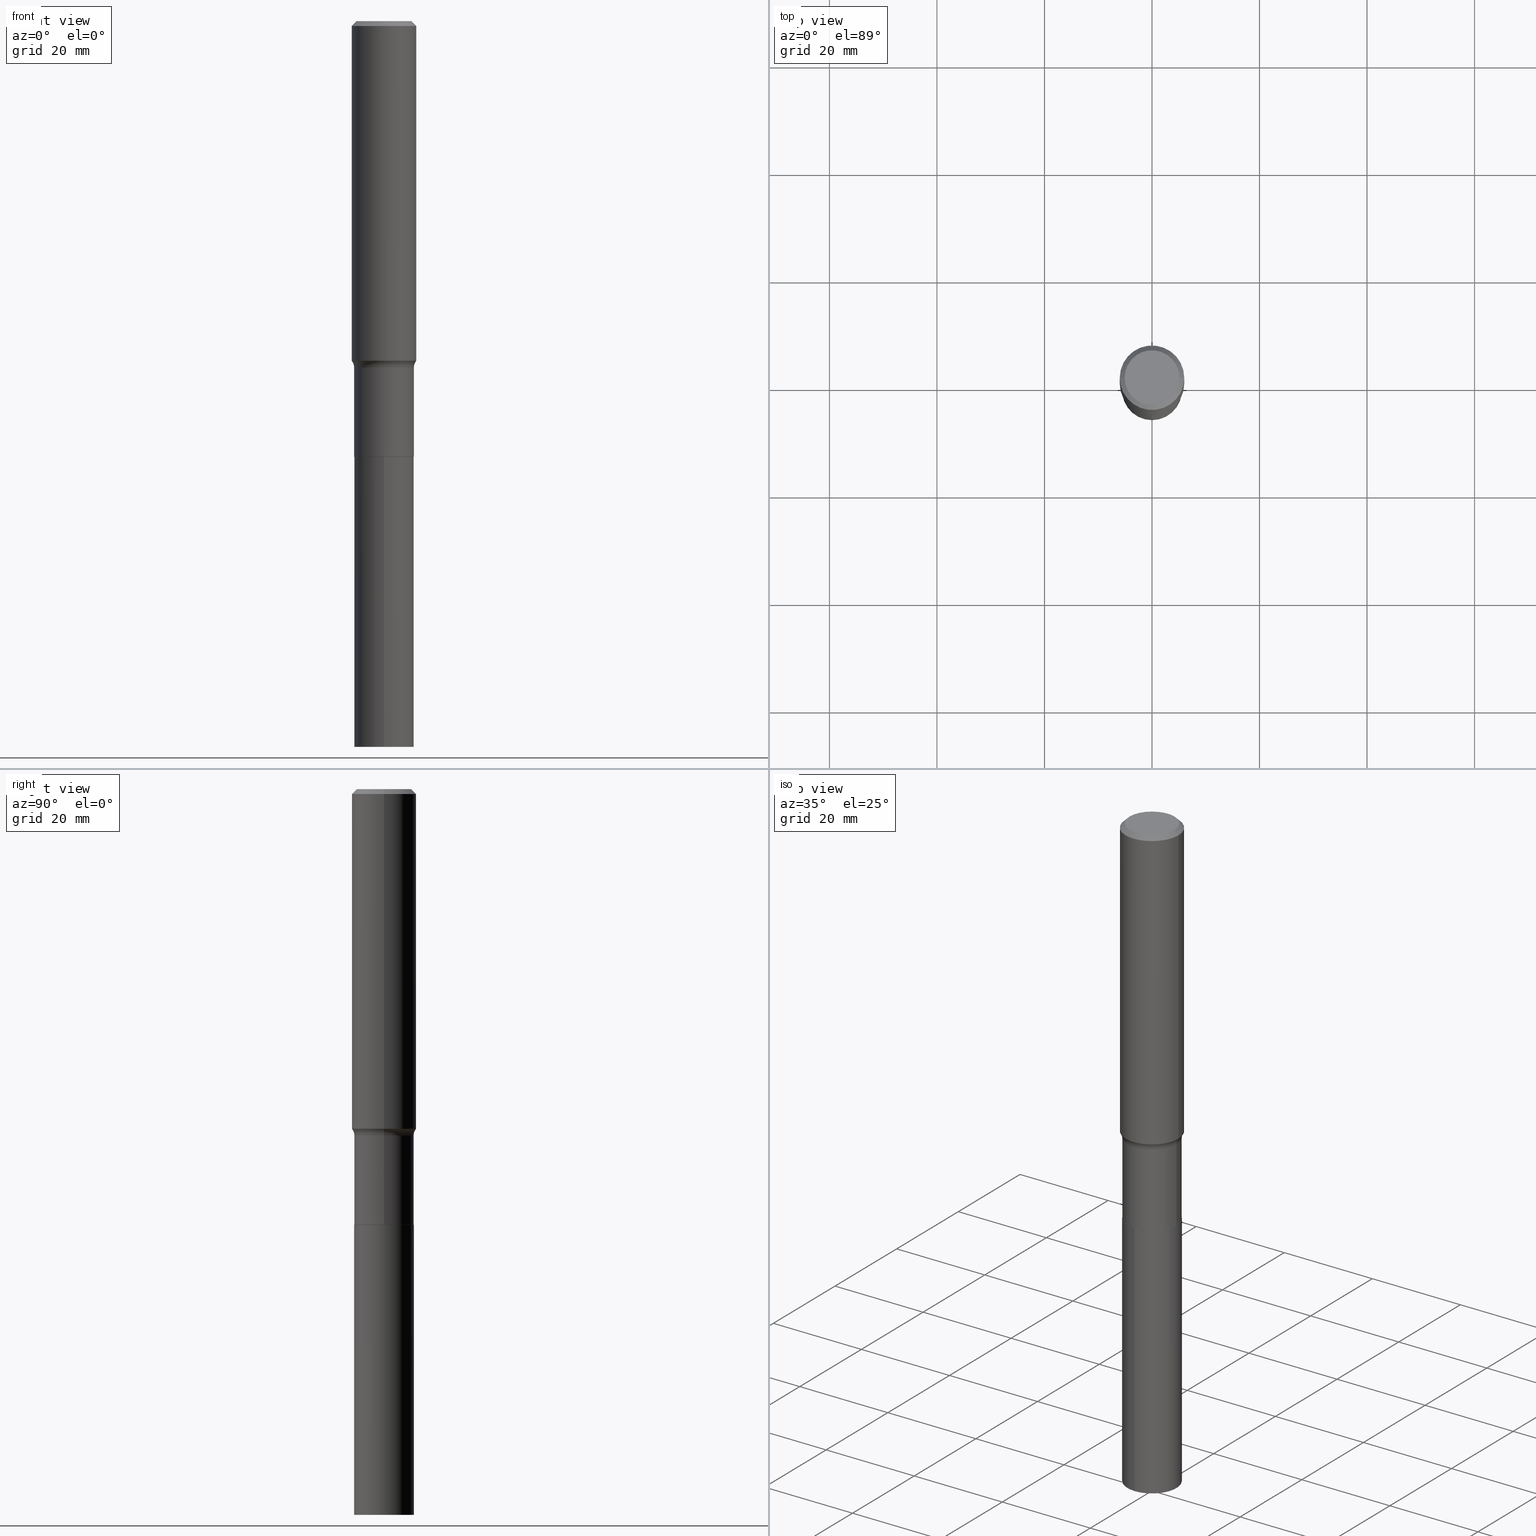
[diagram: canonical four-view strip — front | top / right | iso, engineering-drawing reading convention]
A machine part, canonical four-view strip (front | top / right | iso — engineering-drawing reading convention). The complete STEP part file that produces these views, byte-faithful:
ISO-10303-21;
HEADER;
FILE_DESCRIPTION (( 'STEP AP203' ),
    '1' );
FILE_NAME ('67899.STEP',
    '2024-04-19T16:57:11',
    ( '' ),
    ( '' ),
    'SwSTEP 2.0',
    'SolidWorks 2023',
    '' );
FILE_SCHEMA (( 'CONFIG_CONTROL_DESIGN' ));
ENDSEC;

DATA;
#1 = CARTESIAN_POINT ( 'NONE',  ( -1.525777345074319177E-15, -0.2185000000000185405, -5.315000000000000391 ) ) ;
#2 = DIRECTION ( 'NONE',  ( 0.7071067811865450192, -7.319954787623246579E-15, -0.7071067811865500152 ) ) ;
#3 = DIRECTION ( 'NONE',  ( -6.982962677686265922E-15, -1.000000000000000000, 2.500547362621751271E-15 ) ) ;
#4 = AXIS2_PLACEMENT_3D ( 'NONE', #225, #375, #15 ) ;
#5 = APPROVAL_STATUS ( 'not_yet_approved' ) ;
#6 = EDGE_LOOP ( 'NONE', ( #368, #385 ) ) ;
#7 = CARTESIAN_POINT ( 'NONE',  ( -5.563619623239905406E-29, -4.513804178062054934E-14, -5.315000000000001279 ) ) ;
#8 = DIRECTION ( 'NONE',  ( -2.445468806185136597E-29, 3.491481338843145583E-15, 1.000000000000000000 ) ) ;
#9 = SHAPE_DEFINITION_REPRESENTATION ( #188, #115 ) ;
#10 = ORIENTED_EDGE ( 'NONE', *, *, #407, .T. ) ;
#11 = LOCAL_TIME ( 12, 57, 11.00000000000000000, #175 ) ;
#12 = DIRECTION ( 'NONE',  ( -0.7071067811865450192, 2.468850131082230634E-15, -0.7071067811865500152 ) ) ;
#13 = EDGE_LOOP ( 'NONE', ( #49, #160, #197, #26 ) ) ;
#14 = CARTESIAN_POINT ( 'NONE',  ( -0.2361999999999999933, -2.725578971937181462E-15, -0.03543000000000023908 ) ) ;
#15 = DIRECTION ( 'NONE',  ( 1.000000000000000000, -6.982962677686266711E-15, 4.876176775795936353E-29 ) ) ;
#16 = ORIENTED_EDGE ( 'NONE', *, *, #218, .F. ) ;
#17 = DIRECTION ( 'NONE',  ( 1.000000000000000000, -6.982962677686265922E-15, 4.876176775795935793E-29 ) ) ;
#18 = CC_DESIGN_PERSON_AND_ORGANIZATION_ASSIGNMENT ( #431, #288, ( #279 ) ) ;
#19 = EDGE_CURVE ( 'NONE', #328, #401, #293, .T. ) ;
#20 = CARTESIAN_POINT ( 'NONE',  ( 7.798600022924401307E-29, -1.113433398957079310E-14, -3.189000000000000501 ) ) ;
#21 = EDGE_LOOP ( 'NONE', ( #118, #378, #416, #117 ) ) ;
#22 = CIRCLE ( 'NONE', #350, 0.2184999999999999998 ) ;
#23 = DIRECTION ( 'NONE',  ( -6.982962677686265922E-15, -1.000000000000000000, 5.001094725243502542E-15 ) ) ;
#24 = ORIENTED_EDGE ( 'NONE', *, *, #42, .F. ) ;
#25 = LINE ( 'NONE', #461, #217 ) ;
#26 = ORIENTED_EDGE ( 'NONE', *, *, #224, .F. ) ;
#27 = DIRECTION ( 'NONE',  ( -2.445468806185136597E-29, 3.491481338843145583E-15, 1.000000000000000000 ) ) ;
#28 = ORIENTED_EDGE ( 'NONE', *, *, #203, .F. ) ;
#29 = CC_DESIGN_APPROVAL ( #437, ( #279 ) ) ;
#30 = APPROVAL_STATUS ( 'not_yet_approved' ) ;
#31 = DIRECTION ( 'NONE',  ( 6.982962677686265922E-15, 1.000000000000000000, -3.491096510204006240E-15 ) ) ;
#32 = DIRECTION ( 'NONE',  ( -2.445468806185136597E-29, 3.491481338843145583E-15, 1.000000000000000000 ) ) ;
#33 = PERSON_AND_ORGANIZATION_ROLE ( 'creator' ) ;
#34 = DIRECTION ( 'NONE',  ( -2.445737530587578084E-29, 3.491096510204006240E-15, 1.000000000000000000 ) ) ;
#35 = DIRECTION ( 'NONE',  ( -2.445468806185136597E-29, 3.491481338843145583E-15, 1.000000000000000000 ) ) ;
#36 = EDGE_CURVE ( 'NONE', #184, #248, #299, .T. ) ;
#37 = CALENDAR_DATE ( 2024, 19, 4 ) ;
#38 = AXIS2_PLACEMENT_3D ( 'NONE', #384, #34, #3 ) ;
#39 =( GEOMETRIC_REPRESENTATION_CONTEXT ( 3 ) GLOBAL_UNCERTAINTY_ASSIGNED_CONTEXT ( ( #404 ) ) GLOBAL_UNIT_ASSIGNED_CONTEXT ( ( #314, #57, #352 ) ) REPRESENTATION_CONTEXT ( 'NONE', 'WORKASPACE' ) );
#40 = CC_DESIGN_DATE_AND_TIME_ASSIGNMENT ( #399, #219, ( #324 ) ) ;
#41 = SECURITY_CLASSIFICATION_LEVEL ( 'unclassified' ) ;
#42 = EDGE_CURVE ( 'NONE', #113, #401, #126, .T. ) ;
#43 = CALENDAR_DATE ( 2024, 19, 4 ) ;
#44 = EDGE_LOOP ( 'NONE', ( #458, #137, #122, #221 ) ) ;
#45 = DIRECTION ( 'NONE',  ( -2.445468806185136597E-29, 3.491481338843145583E-15, 1.000000000000000000 ) ) ;
#46 = DIRECTION ( 'NONE',  ( -2.445737530587578084E-29, 3.491096510204006240E-15, 1.000000000000000000 ) ) ;
#47 = ORIENTED_EDGE ( 'NONE', *, *, #154, .F. ) ;
#48 = DIRECTION ( 'NONE',  ( -2.445468806185136597E-29, 3.491481338843145583E-15, 1.000000000000000000 ) ) ;
#49 = ORIENTED_EDGE ( 'NONE', *, *, #238, .F. ) ;
#50 = VECTOR ( 'NONE', #356, 39.37007874015748143 ) ;
#51 = AXIS2_PLACEMENT_3D ( 'NONE', #316, #35, #183 ) ;
#52 = ADVANCED_FACE ( 'NONE', ( #165 ), #269, .F. ) ;
#53 = DIRECTION ( 'NONE',  ( -2.445468806185136597E-29, 3.491481338843145583E-15, 1.000000000000000000 ) ) ;
#54 = VERTEX_POINT ( 'NONE', #424 ) ;
#55 = CARTESIAN_POINT ( 'NONE',  ( -1.001697619218023151E-46, 1.430158722866391908E-32, 4.096137381448114529E-18 ) ) ;
#56 = ORIENTED_EDGE ( 'NONE', *, *, #69, .F. ) ;
#57 =( NAMED_UNIT ( * ) PLANE_ANGLE_UNIT ( ) SI_UNIT ( $, .RADIAN. ) );
#58 = EDGE_CURVE ( 'NONE', #343, #328, #93, .T. ) ;
#59 = EDGE_CURVE ( 'NONE', #401, #328, #106, .T. ) ;
#60 = AXIS2_PLACEMENT_3D ( 'NONE', #305, #423, #62 ) ;
#61 = LENGTH_MEASURE_WITH_UNIT ( LENGTH_MEASURE( 0.02539999999999999897 ), #125 );
#62 = DIRECTION ( 'NONE',  ( -1.000000000000000000, 7.105427357601001859E-15, 0.000000000000000000 ) ) ;
#63 = CARTESIAN_POINT ( 'NONE',  ( -0.2362000000000001598, 1.678301941865357775E-15, -1.161852468318209598E-29 ) ) ;
#64 = CARTESIAN_POINT ( 'NONE',  ( 8.664295980313998742E-31, -1.237031838352134818E-16, -0.03543000000000023908 ) ) ;
#65 = PERSON_AND_ORGANIZATION_ROLE ( 'design_owner' ) ;
#66 = AXIS2_PLACEMENT_3D ( 'NONE', #211, #162, #17 ) ;
#67 = CARTESIAN_POINT ( 'NONE',  ( -5.008488096090115757E-47, 7.150793614331959538E-33, 2.048068690724057264E-18 ) ) ;
#68 = APPROVAL_STATUS ( 'not_yet_approved' ) ;
#69 = EDGE_CURVE ( 'NONE', #150, #260, #198, .T. ) ;
#70 = ADVANCED_FACE ( 'NONE', ( #173 ), #358, .F. ) ;
#71 = CARTESIAN_POINT ( 'NONE',  ( 1.552535877635949067E-15, 0.2184999999999888698, -3.189000000000000945 ) ) ;
#72 = CARTESIAN_POINT ( 'NONE',  ( 0.2362000000000003264, -1.033343442823936694E-14, -2.487213248760255624 ) ) ;
#73 = DATE_AND_TIME ( #243, #438 ) ;
#74 = CARTESIAN_POINT ( 'NONE',  ( 6.205132548814167123E-29, -8.859284749180598143E-15, -2.537400000000000766 ) ) ;
#75 = CARTESIAN_POINT ( 'NONE',  ( -0.2362000000000003264, -7.005756701904507710E-15, -2.487213248760255624 ) ) ;
#76 = AXIS2_PLACEMENT_3D ( 'NONE', #389, #240, #31 ) ;
#77 = EDGE_CURVE ( 'NONE', #113, #142, #272, .T. ) ;
#78 = CARTESIAN_POINT ( 'NONE',  ( 7.797377288521307384E-29, -1.113258824890137081E-14, -3.188500000000000334 ) ) ;
#79 = FACE_OUTER_BOUND ( 'NONE', #227, .T. ) ;
#80 = DIRECTION ( 'NONE',  ( -2.445737530587578084E-29, 3.491096510204006240E-15, 1.000000000000000000 ) ) ;
#81 = ORIENTED_EDGE ( 'NONE', *, *, #408, .F. ) ;
#82 = CARTESIAN_POINT ( 'NONE',  ( -0.2361999999999999933, 1.525672600634282550E-15, -0.03543000000000023908 ) ) ;
#83 = EDGE_LOOP ( 'NONE', ( #300, #258, #155, #56 ) ) ;
#84 = EDGE_CURVE ( 'NONE', #353, #142, #189, .T. ) ;
#85 = EDGE_LOOP ( 'NONE', ( #291, #332, #450, #459 ) ) ;
#86 = CARTESIAN_POINT ( 'NONE',  ( 7.798600022924401307E-29, -1.113433398957079310E-14, -3.189000000000000501 ) ) ;
#87 = VERTEX_POINT ( 'NONE', #392 ) ;
#88 = LOCAL_TIME ( 12, 57, 11.00000000000000000, #435 ) ;
#89 = DIRECTION ( 'NONE',  ( -2.445737530587578084E-29, 3.491096510204006240E-15, 1.000000000000000000 ) ) ;
#90 = DIRECTION ( 'NONE',  ( 1.000000000000000000, -6.982962677686266711E-15, 4.876176775795935793E-29 ) ) ;
#91 = EDGE_CURVE ( 'NONE', #413, #248, #295, .T. ) ;
#92 = CARTESIAN_POINT ( 'NONE',  ( 0.000000000000000000, 0.000000000000000000, 0.000000000000000000 ) ) ;
#93 = LINE ( 'NONE', #63, #50 ) ;
#94 = ORIENTED_EDGE ( 'NONE', *, *, #373, .F. ) ;
#95 = MANIFOLD_SOLID_BREP ( 'Body-Move/Copy2[2]', #206 ) ;
#96 = AXIS2_PLACEMENT_3D ( 'NONE', #64, #32, #304 ) ;
#97 = AXIS2_PLACEMENT_3D ( 'NONE', #322, #8, #171 ) ;
#98 = CARTESIAN_POINT ( 'NONE',  ( 0.000000000000000000, 0.000000000000000000, 0.000000000000000000 ) ) ;
#99 = APPROVAL_PERSON_ORGANIZATION ( #170, #437, #281 ) ;
#100 = CARTESIAN_POINT ( 'NONE',  ( 0.000000000000000000, 0.000000000000000000, 0.000000000000000000 ) ) ;
#101 = CIRCLE ( 'NONE', #446, 0.2362000000000003264 ) ;
#102 = CC_DESIGN_APPROVAL ( #381, ( #447 ) ) ;
#103 = CC_DESIGN_DATE_AND_TIME_ASSIGNMENT ( #73, #251, ( #279 ) ) ;
#104 = VERTEX_POINT ( 'NONE', #1 ) ;
#105 = ADVANCED_FACE ( 'NONE', ( #213 ), #262, .T. ) ;
#106 = CIRCLE ( 'NONE', #376, 0.2361999999999999933 ) ;
#107 = APPLICATION_CONTEXT ( 'configuration controlled 3d designs of mechanical parts and assemblies' ) ;
#108 = DIRECTION ( 'NONE',  ( 1.000000000000000000, -6.982962677686262766E-15, 0.000000000000000000 ) ) ;
#109 = CYLINDRICAL_SURFACE ( 'NONE', #4, 0.2362000000000001598 ) ;
#110 = ADVANCED_FACE ( 'NONE', ( #329 ), #464, .F. ) ;
#111 = AXIS2_PLACEMENT_3D ( 'NONE', #233, #167, #359 ) ;
#112 = FACE_OUTER_BOUND ( 'NONE', #21, .T. ) ;
#113 = VERTEX_POINT ( 'NONE', #72 ) ;
#114 = PRODUCT_RELATED_PRODUCT_CATEGORY ( 'detail', '', ( #333 ) ) ;
#115 = ADVANCED_BREP_SHAPE_REPRESENTATION ( '67899', ( #409, #95, #223 ), #39 ) ;
#116 = FACE_OUTER_BOUND ( 'NONE', #420, .T. ) ;
#117 = ORIENTED_EDGE ( 'NONE', *, *, #91, .F. ) ;
#118 = ORIENTED_EDGE ( 'NONE', *, *, #407, .F. ) ;
#119 = DIRECTION ( 'NONE',  ( -2.445468806185136597E-29, 3.491481338843145583E-15, 1.000000000000000000 ) ) ;
#120 = AXIS2_PLACEMENT_3D ( 'NONE', #20, #45, #226 ) ;
#121 = CC_DESIGN_SECURITY_CLASSIFICATION ( #279, ( #447 ) ) ;
#122 = ORIENTED_EDGE ( 'NONE', *, *, #42, .T. ) ;
#123 = DIRECTION ( 'NONE',  ( 1.000000000000000000, -6.982962677686269866E-15, 0.000000000000000000 ) ) ;
#124 = DIRECTION ( 'NONE',  ( 0.000000000000000000, 0.000000000000000000, 1.000000000000000000 ) ) ;
#125 =( LENGTH_UNIT ( ) NAMED_UNIT ( * ) SI_UNIT ( $, .METRE. ) );
#126 = LINE ( 'NONE', #312, #186 ) ;
#127 = CIRCLE ( 'NONE', #394, 0.2179999999999999993 ) ;
#128 = DIRECTION ( 'NONE',  ( 1.000000000000000000, 0.000000000000000000, 0.000000000000000000 ) ) ;
#129 = ADVANCED_FACE ( 'NONE', ( #284 ), #403, .F. ) ;
#130 = ADVANCED_FACE ( 'NONE', ( #317 ), #377, .T. ) ;
#131 = ADVANCED_FACE ( 'NONE', ( #79 ), #372, .F. ) ;
#132 = CC_DESIGN_PERSON_AND_ORGANIZATION_ASSIGNMENT ( #285, #33, ( #447 ) ) ;
#133 = DATE_AND_TIME ( #335, #88 ) ;
#134 = AXIS2_PLACEMENT_3D ( 'NONE', #98, #274, #90 ) ;
#135 = EDGE_LOOP ( 'NONE', ( #202, #10, #289, #302 ) ) ;
#136 = DIRECTION ( 'NONE',  ( 2.445468806185136597E-29, -3.491481338843145583E-15, -1.000000000000000000 ) ) ;
#137 = ORIENTED_EDGE ( 'NONE', *, *, #286, .T. ) ;
#138 = DATE_AND_TIME ( #43, #387 ) ;
#139 = ORIENTED_EDGE ( 'NONE', *, *, #445, .F. ) ;
#140 = PERSON_AND_ORGANIZATION ( #390, #457 ) ;
#141 = AXIS2_PLACEMENT_3D ( 'NONE', #444, #46, #294 ) ;
#142 = VERTEX_POINT ( 'NONE', #449 ) ;
#143 = FACE_OUTER_BOUND ( 'NONE', #85, .T. ) ;
#144 = CC_DESIGN_PERSON_AND_ORGANIZATION_ASSIGNMENT ( #430, #65, ( #333 ) ) ;
#145 = CARTESIAN_POINT ( 'NONE',  ( 7.798600022924401307E-29, -1.113433398957079310E-14, -3.189000000000000501 ) ) ;
#146 = DIRECTION ( 'NONE',  ( -6.982962677686265922E-15, -1.000000000000000000, 3.491096510204006240E-15 ) ) ;
#147 = ORIENTED_EDGE ( 'NONE', *, *, #218, .T. ) ;
#148 = AXIS2_PLACEMENT_3D ( 'NONE', #78, #454, #123 ) ;
#149 = CYLINDRICAL_SURFACE ( 'NONE', #236, 0.2184999999999999998 ) ;
#150 = VERTEX_POINT ( 'NONE', #71 ) ;
#151 = CARTESIAN_POINT ( 'NONE',  ( 8.664295980313998742E-31, -1.237031838352134818E-16, -0.03543000000000023908 ) ) ;
#152 = EDGE_CURVE ( 'NONE', #260, #150, #166, .T. ) ;
#153 = FACE_OUTER_BOUND ( 'NONE', #283, .T. ) ;
#154 = EDGE_CURVE ( 'NONE', #87, #401, #216, .T. ) ;
#155 = ORIENTED_EDGE ( 'NONE', *, *, #235, .T. ) ;
#156 = DIRECTION ( 'NONE',  ( -6.982962677686265922E-15, -1.000000000000000000, 5.001094725243502542E-15 ) ) ;
#157 = EDGE_LOOP ( 'NONE', ( #364, #220, #402, #192 ) ) ;
#158 = CIRCLE ( 'NONE', #199, 0.2179999999999999993 ) ;
#159 = CIRCLE ( 'NONE', #465, 0.2184999999999999998 ) ;
#160 = ORIENTED_EDGE ( 'NONE', *, *, #154, .T. ) ;
#161 = LINE ( 'NONE', #355, #273 ) ;
#162 = DIRECTION ( 'NONE',  ( -2.438088387897960049E-29, 3.491481338843145188E-15, 1.000000000000000000 ) ) ;
#163 = LINE ( 'NONE', #237, #190 ) ;
#164 = CYLINDRICAL_SURFACE ( 'NONE', #325, 0.2362000000000001598 ) ;
#165 = FACE_OUTER_BOUND ( 'NONE', #6, .T. ) ;
#166 = CIRCLE ( 'NONE', #313, 0.2184999999999999998 ) ;
#167 = DIRECTION ( 'NONE',  ( -2.445468806185136597E-29, 3.491481338843145583E-15, 1.000000000000000000 ) ) ;
#168 = APPROVAL_ROLE ( '' ) ;
#169 = DIRECTION ( 'NONE',  ( 1.000000000000000000, -6.982962677686269866E-15, 0.000000000000000000 ) ) ;
#170 = PERSON_AND_ORGANIZATION ( #390, #457 ) ;
#171 = DIRECTION ( 'NONE',  ( 1.000000000000000000, -6.982962677686267499E-15, 4.883557194083112901E-29 ) ) ;
#172 = CIRCLE ( 'NONE', #415, 0.2007700000000000040 ) ;
#173 = FACE_OUTER_BOUND ( 'NONE', #354, .T. ) ;
#174 = DIRECTION ( 'NONE',  ( -2.445468806185136597E-29, 3.491481338843145583E-15, 1.000000000000000000 ) ) ;
#175 = COORDINATED_UNIVERSAL_TIME_OFFSET ( 5, 0, .BEHIND. ) ;
#176 = COORDINATED_UNIVERSAL_TIME_OFFSET ( 5, 0, .BEHIND. ) ;
#177 = ORIENTED_EDGE ( 'NONE', *, *, #238, .T. ) ;
#178 = APPROVAL_ROLE ( '' ) ;
#179 = VECTOR ( 'NONE', #89, 39.37007874015748143 ) ;
#180 = DIRECTION ( 'NONE',  ( -2.445468806185136597E-29, 3.491481338843145583E-15, 1.000000000000000000 ) ) ;
#181 = ADVANCED_FACE ( 'NONE', ( #432 ), #149, .T. ) ;
#182 = CYLINDRICAL_SURFACE ( 'NONE', #141, 0.2184999999999999998 ) ;
#183 = DIRECTION ( 'NONE',  ( 1.000000000000000000, -6.982962677686270655E-15, 0.000000000000000000 ) ) ;
#184 = VERTEX_POINT ( 'NONE', #232 ) ;
#185 = CARTESIAN_POINT ( 'NONE',  ( -1.525777345074371242E-15, -0.2185000000000111298, -3.188999999999999613 ) ) ;
#186 = VECTOR ( 'NONE', #196, 39.37007874015748143 ) ;
#187 = AXIS2_PLACEMENT_3D ( 'NONE', #67, #397, #365 ) ;
#188 = PRODUCT_DEFINITION_SHAPE ( 'NONE', 'NONE',  #324 ) ;
#189 = CIRCLE ( 'NONE', #278, 0.2184999999999999443 ) ;
#190 = VECTOR ( 'NONE', #201, 39.37007874015748143 ) ;
#191 = DIRECTION ( 'NONE',  ( 1.000000000000000000, -6.982962677686270655E-15, 0.000000000000000000 ) ) ;
#192 = ORIENTED_EDGE ( 'NONE', *, *, #84, .F. ) ;
#193 = DIRECTION ( 'NONE',  ( -2.445468806185136597E-29, 3.491481338843145583E-15, 1.000000000000000000 ) ) ;
#194 = ADVANCED_FACE ( 'NONE', ( #228 ), #419, .F. ) ;
#195 = DIRECTION ( 'NONE',  ( -2.445737530587578084E-29, 3.491096510204006240E-15, 1.000000000000000000 ) ) ;
#196 = DIRECTION ( 'NONE',  ( -2.445468806185136877E-29, 3.491481338843145188E-15, 1.000000000000000000 ) ) ;
#197 = ORIENTED_EDGE ( 'NONE', *, *, #59, .T. ) ;
#198 = CIRCLE ( 'NONE', #38, 0.2184999999999999998 ) ;
#199 = AXIS2_PLACEMENT_3D ( 'NONE', #145, #414, #452 ) ;
#200 = DESIGN_CONTEXT ( 'detailed design', #107, 'design' ) ;
#201 = DIRECTION ( 'NONE',  ( -2.445468806185136877E-29, 3.491481338843145188E-15, 1.000000000000000000 ) ) ;
#202 = ORIENTED_EDGE ( 'NONE', *, *, #373, .T. ) ;
#203 = EDGE_CURVE ( 'NONE', #441, #184, #158, .T. ) ;
#204 = FACE_OUTER_BOUND ( 'NONE', #44, .T. ) ;
#205 = ADVANCED_FACE ( 'NONE', ( #116 ), #109, .T. ) ;
#206 = CLOSED_SHELL ( 'NONE', ( #130, #311, #205, #70, #326, #429, #110, #425, #105, #129, #194, #345 ) ) ;
#207 = CIRCLE ( 'NONE', #323, 0.2184999999999999443 ) ;
#208 = APPROVAL_PERSON_ORGANIZATION ( #239, #361, #168 ) ;
#209 = DIRECTION ( 'NONE',  ( 1.000000000000000000, -6.982962677686266711E-15, 4.876176775795936353E-29 ) ) ;
#210 = APPLICATION_CONTEXT ( 'configuration controlled 3d designs of mechanical parts and assemblies' ) ;
#211 = CARTESIAN_POINT ( 'NONE',  ( 7.798600022924401307E-29, -1.113433398957079310E-14, -3.189000000000000501 ) ) ;
#212 = CARTESIAN_POINT ( 'NONE',  ( 8.664295980313998742E-31, -1.237031838352134818E-16, -0.03543000000000023908 ) ) ;
#213 = FACE_OUTER_BOUND ( 'NONE', #382, .T. ) ;
#214 = COORDINATED_UNIVERSAL_TIME_OFFSET ( 5, 0, .BEHIND. ) ;
#215 = AXIS2_PLACEMENT_3D ( 'NONE', #282, #440, #108 ) ;
#216 = LINE ( 'NONE', #319, #436 ) ;
#217 = VECTOR ( 'NONE', #421, 39.37007874015748143 ) ;
#218 = EDGE_CURVE ( 'NONE', #54, #87, #427, .T. ) ;
#219 = DATE_TIME_ROLE ( 'creation_date' ) ;
#220 = ORIENTED_EDGE ( 'NONE', *, *, #91, .T. ) ;
#221 = ORIENTED_EDGE ( 'NONE', *, *, #19, .F. ) ;
#222 = CARTESIAN_POINT ( 'NONE',  ( 1.552535877635896607E-15, 0.2184999999999888698, -3.189000000000000945 ) ) ;
#223 = AXIS2_PLACEMENT_3D ( 'NONE', #100, #124, #128 ) ;
#224 = EDGE_CURVE ( 'NONE', #54, #328, #456, .T. ) ;
#225 = CARTESIAN_POINT ( 'NONE',  ( 0.000000000000000000, 0.000000000000000000, 0.000000000000000000 ) ) ;
#226 = DIRECTION ( 'NONE',  ( 1.000000000000000000, -6.982962677686270655E-15, 0.000000000000000000 ) ) ;
#227 = EDGE_LOOP ( 'NONE', ( #422, #367 ) ) ;
#228 = FACE_OUTER_BOUND ( 'NONE', #270, .T. ) ;
#229 = CARTESIAN_POINT ( 'NONE',  ( 0.2184999999999999720, -1.265836559397582015E-14, -3.188500000000000334 ) ) ;
#230 = CC_DESIGN_APPROVAL ( #361, ( #324 ) ) ;
#231 = CARTESIAN_POINT ( 'NONE',  ( 1.299823801295359673E-28, -1.855640517026451512E-14, -5.315000000000001279 ) ) ;
#232 = CARTESIAN_POINT ( 'NONE',  ( 0.2179999999999999993, -1.265661985330639943E-14, -3.189000000000000501 ) ) ;
#233 = CARTESIAN_POINT ( 'NONE',  ( 6.082402414173597497E-29, -8.684058643769867259E-15, -2.487213248760255624 ) ) ;
#234 = CARTESIAN_POINT ( 'NONE',  ( 8.664295980313998742E-31, -1.237031838352134818E-16, -0.03543000000000023908 ) ) ;
#235 = EDGE_CURVE ( 'NONE', #104, #260, #411, .T. ) ;
#236 = AXIS2_PLACEMENT_3D ( 'NONE', #265, #80, #301 ) ;
#237 = CARTESIAN_POINT ( 'NONE',  ( 0.2184999999999999443, -1.525777345074448945E-15, 1.065444625511411679E-29 ) ) ;
#238 = EDGE_CURVE ( 'NONE', #87, #54, #172, .T. ) ;
#239 = PERSON_AND_ORGANIZATION ( #390, #457 ) ;
#240 = DIRECTION ( 'NONE',  ( 2.445737530587577803E-29, -3.491096510204006240E-15, -1.000000000000000000 ) ) ;
#241 = CC_DESIGN_PERSON_AND_ORGANIZATION_ASSIGNMENT ( #140, #363, ( #447 ) ) ;
#242 = CARTESIAN_POINT ( 'NONE',  ( 7.797377288521307384E-29, -1.113258824890137081E-14, -3.188500000000000334 ) ) ;
#243 = CALENDAR_DATE ( 2024, 19, 4 ) ;
#244 = EDGE_CURVE ( 'NONE', #142, #353, #207, .T. ) ;
#245 = DIRECTION ( 'NONE',  ( -1.000000000000000000, 6.982962677686266711E-15, 0.000000000000000000 ) ) ;
#246 = PERSON_AND_ORGANIZATION ( #390, #457 ) ;
#247 = EDGE_CURVE ( 'NONE', #248, #413, #342, .T. ) ;
#248 = VERTEX_POINT ( 'NONE', #229 ) ;
#249 = CARTESIAN_POINT ( 'NONE',  ( 6.205132548814167123E-29, -8.859284749180598143E-15, -2.537400000000000766 ) ) ;
#250 = AXIS2_PLACEMENT_3D ( 'NONE', #242, #398, #169 ) ;
#251 = DATE_TIME_ROLE ( 'classification_date' ) ;
#252 = ORIENTED_EDGE ( 'NONE', *, *, #19, .T. ) ;
#253 = DIRECTION ( 'NONE',  ( -2.445468806185136597E-29, 3.491481338843145583E-15, 1.000000000000000000 ) ) ;
#254 = DIRECTION ( 'NONE',  ( -1.000000000000000000, 6.982962677686266711E-15, 0.000000000000000000 ) ) ;
#255 = CIRCLE ( 'NONE', #60, 0.07999999999999996003 ) ;
#256 = CARTESIAN_POINT ( 'NONE',  ( 6.082402414173597497E-29, -8.684058643769867259E-15, -2.487213248760255624 ) ) ;
#257 = ORIENTED_EDGE ( 'NONE', *, *, #84, .T. ) ;
#258 = ORIENTED_EDGE ( 'NONE', *, *, #393, .T. ) ;
#259 = CARTESIAN_POINT ( 'NONE',  ( 1.552535877635922837E-15, 0.2184999999999814591, -5.315000000000003055 ) ) ;
#260 = VERTEX_POINT ( 'NONE', #185 ) ;
#261 = CARTESIAN_POINT ( 'NONE',  ( -0.2184999999999999443, -8.443400621405166163E-15, -2.537400000000000766 ) ) ;
#262 = CONICAL_SURFACE ( 'NONE', #405, 0.2361999999999999933, 0.7853981633974447263 ) ;
#263 = DIRECTION ( 'NONE',  ( -2.445737530587578084E-29, 3.491096510204006240E-15, 1.000000000000000000 ) ) ;
#264 = ORIENTED_EDGE ( 'NONE', *, *, #244, .T. ) ;
#265 = CARTESIAN_POINT ( 'NONE',  ( 7.798600022924401307E-29, -1.113433398957079310E-14, -3.189000000000000501 ) ) ;
#266 = ORIENTED_EDGE ( 'NONE', *, *, #396, .T. ) ;
#267 = MECHANICAL_CONTEXT ( 'NONE', #210, 'mechanical' ) ;
#268 = ADVANCED_FACE ( 'NONE', ( #143 ), #182, .T. ) ;
#269 = PLANE ( 'NONE',  #76 ) ;
#270 = EDGE_LOOP ( 'NONE', ( #94, #28 ) ) ;
#271 = CARTESIAN_POINT ( 'NONE',  ( -0.2184999999999999720, -8.443400621405166163E-15, -3.188500000000000334 ) ) ;
#272 = CIRCLE ( 'NONE', #215, 0.07999999999999996003 ) ;
#273 = VECTOR ( 'NONE', #383, 39.37007874015748143 ) ;
#274 = DIRECTION ( 'NONE',  ( -2.445468806185136597E-29, 3.491481338843145583E-15, 1.000000000000000000 ) ) ;
#275 = PERSON_AND_ORGANIZATION ( #390, #457 ) ;
#276 = CARTESIAN_POINT ( 'NONE',  ( 7.798600022924401307E-29, -1.113433398957079310E-14, -3.189000000000000501 ) ) ;
#277 = CLOSED_SHELL ( 'NONE', ( #268, #131, #181, #52 ) ) ;
#278 = AXIS2_PLACEMENT_3D ( 'NONE', #249, #174, #280 ) ;
#279 = SECURITY_CLASSIFICATION ( '', '', #41 ) ;
#280 = DIRECTION ( 'NONE',  ( 1.000000000000000000, -6.982962677686270655E-15, 0.000000000000000000 ) ) ;
#281 = APPROVAL_ROLE ( '' ) ;
#282 = CARTESIAN_POINT ( 'NONE',  ( 0.2984999999999998765, -1.094369910846994913E-14, -2.537400000000000766 ) ) ;
#283 = EDGE_LOOP ( 'NONE', ( #337, #330, #306, #81 ) ) ;
#284 = FACE_OUTER_BOUND ( 'NONE', #320, .T. ) ;
#285 = PERSON_AND_ORGANIZATION ( #390, #457 ) ;
#286 = EDGE_CURVE ( 'NONE', #343, #113, #101, .T. ) ;
#287 = VECTOR ( 'NONE', #12, 39.37007874015748143 ) ;
#288 = PERSON_AND_ORGANIZATION_ROLE ( 'classification_officer' ) ;
#289 = ORIENTED_EDGE ( 'NONE', *, *, #247, .F. ) ;
#290 = DIRECTION ( 'NONE',  ( 1.000000000000000000, -6.982962677686267499E-15, 4.883557194083112901E-29 ) ) ;
#291 = ORIENTED_EDGE ( 'NONE', *, *, #442, .T. ) ;
#292 = CARTESIAN_POINT ( 'NONE',  ( 6.205132548814167123E-29, -8.859284749180598143E-15, -2.537400000000000766 ) ) ;
#293 = CIRCLE ( 'NONE', #96, 0.2361999999999999933 ) ;
#294 = DIRECTION ( 'NONE',  ( -6.982962677686265922E-15, -1.000000000000000000, 2.500547362621751271E-15 ) ) ;
#295 = CIRCLE ( 'NONE', #250, 0.2184999999999999720 ) ;
#296 = DIRECTION ( 'NONE',  ( -2.445737530587577803E-29, 3.491096510204006240E-15, 1.000000000000000000 ) ) ;
#297 = APPROVAL_PERSON_ORGANIZATION ( #275, #381, #178 ) ;
#298 = FACE_OUTER_BOUND ( 'NONE', #13, .T. ) ;
#299 = LINE ( 'NONE', #418, #339 ) ;
#300 = ORIENTED_EDGE ( 'NONE', *, *, #391, .F. ) ;
#301 = DIRECTION ( 'NONE',  ( -6.982962677686265922E-15, -1.000000000000000000, 2.500547362621751271E-15 ) ) ;
#302 = ORIENTED_EDGE ( 'NONE', *, *, #36, .F. ) ;
#303 = CYLINDRICAL_SURFACE ( 'NONE', #334, 0.2184999999999999443 ) ;
#304 = DIRECTION ( 'NONE',  ( 1.000000000000000000, -6.982962677686266711E-15, 0.000000000000000000 ) ) ;
#305 = CARTESIAN_POINT ( 'NONE',  ( -0.2984999999999998765, -6.738314682936700754E-15, -2.537400000000000766 ) ) ;
#306 = ORIENTED_EDGE ( 'NONE', *, *, #244, .F. ) ;
#307 = AXIS2_PLACEMENT_3D ( 'NONE', #7, #296, #146 ) ;
#308 = CYLINDRICAL_SURFACE ( 'NONE', #134, 0.2184999999999999443 ) ;
#309 = ORIENTED_EDGE ( 'NONE', *, *, #58, .T. ) ;
#310 = FACE_OUTER_BOUND ( 'NONE', #157, .T. ) ;
#311 = ADVANCED_FACE ( 'NONE', ( #298 ), #369, .T. ) ;
#312 = CARTESIAN_POINT ( 'NONE',  ( 0.2362000000000001598, -1.649375784469497314E-15, 1.151752954443000929E-29 ) ) ;
#313 = AXIS2_PLACEMENT_3D ( 'NONE', #276, #433, #321 ) ;
#314 =( CONVERSION_BASED_UNIT ( 'INCH', #61 ) LENGTH_UNIT ( ) NAMED_UNIT ( #340 ) );
#315 = DIRECTION ( 'NONE',  ( -2.445468806185136597E-29, 3.491481338843145583E-15, 1.000000000000000000 ) ) ;
#316 = CARTESIAN_POINT ( 'NONE',  ( 7.798600022924401307E-29, -1.113433398957079310E-14, -3.189000000000000501 ) ) ;
#317 = FACE_OUTER_BOUND ( 'NONE', #135, .T. ) ;
#318 = CARTESIAN_POINT ( 'NONE',  ( 0.2361999999999999933, -1.773078968304709711E-15, -0.03543000000000023908 ) ) ;
#319 = CARTESIAN_POINT ( 'NONE',  ( 0.2361999999999999933, -1.744152810908849251E-15, -0.03543000000000023908 ) ) ;
#320 = EDGE_LOOP ( 'NONE', ( #147, #177 ) ) ;
#321 = DIRECTION ( 'NONE',  ( -6.982962677686265922E-15, -1.000000000000000000, 2.500547362621751271E-15 ) ) ;
#322 = CARTESIAN_POINT ( 'NONE',  ( 6.205132548814167123E-29, -8.859284749180598143E-15, -2.537400000000000766 ) ) ;
#323 = AXIS2_PLACEMENT_3D ( 'NONE', #292, #119, #191 ) ;
#324 = PRODUCT_DEFINITION ( 'UNKNOWN', '', #447, #200 ) ;
#325 = AXIS2_PLACEMENT_3D ( 'NONE', #92, #27, #209 ) ;
#326 = ADVANCED_FACE ( 'NONE', ( #153 ), #303, .T. ) ;
#327 = CALENDAR_DATE ( 2024, 19, 4 ) ;
#328 = VERTEX_POINT ( 'NONE', #14 ) ;
#329 = FACE_OUTER_BOUND ( 'NONE', #374, .T. ) ;
#330 = ORIENTED_EDGE ( 'NONE', *, *, #467, .T. ) ;
#331 = APPROVAL_DATE_TIME ( #133, #437 ) ;
#332 = ORIENTED_EDGE ( 'NONE', *, *, #391, .T. ) ;
#333 = PRODUCT ( '67899', '67899', '', ( #267 ) ) ;
#334 = AXIS2_PLACEMENT_3D ( 'NONE', #347, #341, #338 ) ;
#335 = CALENDAR_DATE ( 2024, 19, 4 ) ;
#336 = CARTESIAN_POINT ( 'NONE',  ( -1.525777345074371242E-15, -0.2185000000000111298, -3.188999999999999613 ) ) ;
#337 = ORIENTED_EDGE ( 'NONE', *, *, #247, .T. ) ;
#338 = DIRECTION ( 'NONE',  ( 1.000000000000000000, -6.982962677686266711E-15, 4.876176775795935793E-29 ) ) ;
#339 = VECTOR ( 'NONE', #462, 39.37007874015748143 ) ;
#340 = DIMENSIONAL_EXPONENTS ( 1.000000000000000000, 0.000000000000000000, 0.000000000000000000, 0.000000000000000000, 0.000000000000000000, 0.000000000000000000, 0.000000000000000000 ) ;
#341 = DIRECTION ( 'NONE',  ( -2.445468806185136597E-29, 3.491481338843145583E-15, 1.000000000000000000 ) ) ;
#342 = CIRCLE ( 'NONE', #148, 0.2184999999999999720 ) ;
#343 = VERTEX_POINT ( 'NONE', #75 ) ;
#344 = DIRECTION ( 'NONE',  ( 1.000000000000000000, -6.982962677686266711E-15, 4.876140833081945105E-29 ) ) ;
#345 = ADVANCED_FACE ( 'NONE', ( #112 ), #455, .T. ) ;
#346 = ORIENTED_EDGE ( 'NONE', *, *, #59, .F. ) ;
#347 = CARTESIAN_POINT ( 'NONE',  ( 0.000000000000000000, 0.000000000000000000, 0.000000000000000000 ) ) ;
#348 = ORIENTED_EDGE ( 'NONE', *, *, #77, .T. ) ;
#349 = COORDINATED_UNIVERSAL_TIME_OFFSET ( 5, 0, .BEHIND. ) ;
#350 = AXIS2_PLACEMENT_3D ( 'NONE', #231, #380, #156 ) ;
#351 = CIRCLE ( 'NONE', #111, 0.2362000000000003264 ) ;
#352 =( NAMED_UNIT ( * ) SI_UNIT ( $, .STERADIAN. ) SOLID_ANGLE_UNIT ( ) );
#353 = VERTEX_POINT ( 'NONE', #261 ) ;
#354 = EDGE_LOOP ( 'NONE', ( #395, #266, #257, #410 ) ) ;
#355 = CARTESIAN_POINT ( 'NONE',  ( -0.2184999999999999443, 1.552535877635818510E-15, -1.074787317220696738E-29 ) ) ;
#356 = DIRECTION ( 'NONE',  ( -2.445468806185136877E-29, 3.491481338843145188E-15, 1.000000000000000000 ) ) ;
#357 = VERTEX_POINT ( 'NONE', #259 ) ;
#358 = TOROIDAL_SURFACE ( 'NONE', #463, 0.2984999999999998765, 0.07999999999999996003 ) ;
#359 = DIRECTION ( 'NONE',  ( 1.000000000000000000, -6.982962677686270655E-15, 0.000000000000000000 ) ) ;
#360 = APPROVAL_DATE_TIME ( #138, #361 ) ;
#361 = APPROVAL ( #30, 'UNSPECIFIED' ) ;
#362 = VECTOR ( 'NONE', #263, 39.37007874015748143 ) ;
#363 = PERSON_AND_ORGANIZATION_ROLE ( 'design_supplier' ) ;
#364 = ORIENTED_EDGE ( 'NONE', *, *, #467, .F. ) ;
#365 = DIRECTION ( 'NONE',  ( -1.000000000000000000, 6.982962677686265922E-15, -4.876176775795935793E-29 ) ) ;
#366 = DATE_AND_TIME ( #37, #428 ) ;
#367 = ORIENTED_EDGE ( 'NONE', *, *, #393, .F. ) ;
#368 = ORIENTED_EDGE ( 'NONE', *, *, #152, .T. ) ;
#369 = CONICAL_SURFACE ( 'NONE', #434, 0.2361999999999999933, 0.7853981633974447263 ) ;
#370 = DIRECTION ( 'NONE',  ( 1.000000000000000000, -6.982962677686270655E-15, 0.000000000000000000 ) ) ;
#371 = DIRECTION ( 'NONE',  ( 1.000000000000000000, -6.982962677686266711E-15, 4.876140833081945105E-29 ) ) ;
#372 = PLANE ( 'NONE',  #307 ) ;
#373 = EDGE_CURVE ( 'NONE', #184, #441, #127, .T. ) ;
#374 = EDGE_LOOP ( 'NONE', ( #451, #139, #348, #264 ) ) ;
#375 = DIRECTION ( 'NONE',  ( -2.445468806185136597E-29, 3.491481338843145583E-15, 1.000000000000000000 ) ) ;
#376 = AXIS2_PLACEMENT_3D ( 'NONE', #234, #315, #466 ) ;
#377 = CONICAL_SURFACE ( 'NONE', #51, 0.2179999999999999993, 0.7853981633972434429 ) ;
#378 = ORIENTED_EDGE ( 'NONE', *, *, #203, .T. ) ;
#379 = DIRECTION ( 'NONE',  ( 2.445468806185136597E-29, -3.491481338843145583E-15, -1.000000000000000000 ) ) ;
#380 = DIRECTION ( 'NONE',  ( -2.445737530587578084E-29, 3.491096510204006240E-15, 1.000000000000000000 ) ) ;
#381 = APPROVAL ( #5, 'UNSPECIFIED' ) ;
#382 = EDGE_LOOP ( 'NONE', ( #47, #16, #453, #252 ) ) ;
#383 = DIRECTION ( 'NONE',  ( -2.445468806185136877E-29, 3.491481338843145188E-15, 1.000000000000000000 ) ) ;
#384 = CARTESIAN_POINT ( 'NONE',  ( 7.798600022924401307E-29, -1.113433398957079310E-14, -3.189000000000000501 ) ) ;
#385 = ORIENTED_EDGE ( 'NONE', *, *, #69, .T. ) ;
#386 = AXIS2_PLACEMENT_3D ( 'NONE', #448, #180, #344 ) ;
#387 = LOCAL_TIME ( 12, 57, 11.00000000000000000, #349 ) ;
#388 = CARTESIAN_POINT ( 'NONE',  ( 1.299823801295359673E-28, -1.855640517026451512E-14, -5.315000000000001279 ) ) ;
#389 = CARTESIAN_POINT ( 'NONE',  ( 7.798600022924401307E-29, -1.113433398957079310E-14, -3.189000000000000501 ) ) ;
#390 = PERSON ( 'UNSPECIFIED', 'UNSPECIFIED', 'UNSPECIFIED', ('UNSPECIFIED'), ('UNSPECIFIED'), ('UNSPECIFIED') ) ;
#391 = EDGE_CURVE ( 'NONE', #357, #150, #417, .T. ) ;
#392 = CARTESIAN_POINT ( 'NONE',  ( 0.2007700000000000040, -1.560767496960719869E-15, 4.096137381458473721E-18 ) ) ;
#393 = EDGE_CURVE ( 'NONE', #357, #104, #22, .T. ) ;
#394 = AXIS2_PLACEMENT_3D ( 'NONE', #86, #53, #406 ) ;
#395 = ORIENTED_EDGE ( 'NONE', *, *, #286, .F. ) ;
#396 = EDGE_CURVE ( 'NONE', #343, #353, #255, .T. ) ;
#397 = DIRECTION ( 'NONE',  ( 2.438088387897960049E-29, -3.491481338843145188E-15, -1.000000000000000000 ) ) ;
#398 = DIRECTION ( 'NONE',  ( -2.445468806185136597E-29, 3.491481338843145583E-15, 1.000000000000000000 ) ) ;
#399 = DATE_AND_TIME ( #327, #11 ) ;
#400 = PERSON_AND_ORGANIZATION_ROLE ( 'creator' ) ;
#401 = VERTEX_POINT ( 'NONE', #318 ) ;
#402 = ORIENTED_EDGE ( 'NONE', *, *, #408, .T. ) ;
#403 = PLANE ( 'NONE',  #187 ) ;
#404 = UNCERTAINTY_MEASURE_WITH_UNIT (LENGTH_MEASURE( 1.000000000000000082E-05 ), #314, 'distance_accuracy_value', 'NONE');
#405 = AXIS2_PLACEMENT_3D ( 'NONE', #212, #136, #245 ) ;
#406 = DIRECTION ( 'NONE',  ( 1.000000000000000000, -6.982962677686270655E-15, 0.000000000000000000 ) ) ;
#407 = EDGE_CURVE ( 'NONE', #441, #413, #25, .T. ) ;
#408 = EDGE_CURVE ( 'NONE', #248, #142, #163, .T. ) ;
#409 = MANIFOLD_SOLID_BREP ( 'Body-Move/Copy2[1]', #277 ) ;
#410 = ORIENTED_EDGE ( 'NONE', *, *, #77, .F. ) ;
#411 = LINE ( 'NONE', #336, #362 ) ;
#412 = ORIENTED_EDGE ( 'NONE', *, *, #445, .T. ) ;
#413 = VERTEX_POINT ( 'NONE', #271 ) ;
#414 = DIRECTION ( 'NONE',  ( -2.445468806185136597E-29, 3.491481338843145583E-15, 1.000000000000000000 ) ) ;
#415 = AXIS2_PLACEMENT_3D ( 'NONE', #55, #48, #371 ) ;
#416 = ORIENTED_EDGE ( 'NONE', *, *, #36, .T. ) ;
#417 = LINE ( 'NONE', #222, #179 ) ;
#418 = CARTESIAN_POINT ( 'NONE',  ( 0.2179999999999999993, -1.265661985330639943E-14, -3.189000000000000501 ) ) ;
#419 = PLANE ( 'NONE',  #66 ) ;
#420 = EDGE_LOOP ( 'NONE', ( #412, #309, #346, #24 ) ) ;
#421 = DIRECTION ( 'NONE',  ( -0.7071067811864026886, 7.493145998869830357E-15, 0.7071067811866923458 ) ) ;
#422 = ORIENTED_EDGE ( 'NONE', *, *, #442, .F. ) ;
#423 = DIRECTION ( 'NONE',  ( 7.105427357601001859E-15, 1.000000000000000000, -3.491481338843145583E-15 ) ) ;
#424 = CARTESIAN_POINT ( 'NONE',  ( -0.2007700000000000040, 1.463821008716676943E-15, 4.096137381438094301E-18 ) ) ;
#425 = ADVANCED_FACE ( 'NONE', ( #204 ), #164, .T. ) ;
#426 = CARTESIAN_POINT ( 'NONE',  ( -0.2179999999999999993, -9.582701598439664486E-15, -3.189000000000000501 ) ) ;
#427 = CIRCLE ( 'NONE', #386, 0.2007700000000000040 ) ;
#428 = LOCAL_TIME ( 12, 57, 11.00000000000000000, #214 ) ;
#429 = ADVANCED_FACE ( 'NONE', ( #310 ), #308, .T. ) ;
#430 = PERSON_AND_ORGANIZATION ( #390, #457 ) ;
#431 = PERSON_AND_ORGANIZATION ( #390, #457 ) ;
#432 = FACE_OUTER_BOUND ( 'NONE', #83, .T. ) ;
#433 = DIRECTION ( 'NONE',  ( -2.445737530587578084E-29, 3.491096510204006240E-15, 1.000000000000000000 ) ) ;
#434 = AXIS2_PLACEMENT_3D ( 'NONE', #151, #379, #254 ) ;
#435 = COORDINATED_UNIVERSAL_TIME_OFFSET ( 5, 0, .BEHIND. ) ;
#436 = VECTOR ( 'NONE', #2, 39.37007874015748143 ) ;
#437 = APPROVAL ( #68, 'UNSPECIFIED' ) ;
#438 = LOCAL_TIME ( 12, 57, 11.00000000000000000, #176 ) ;
#439 = APPROVAL_DATE_TIME ( #366, #381 ) ;
#440 = DIRECTION ( 'NONE',  ( -6.982962677686266711E-15, -1.000000000000000000, 3.491481338843145583E-15 ) ) ;
#441 = VERTEX_POINT ( 'NONE', #426 ) ;
#442 = EDGE_CURVE ( 'NONE', #104, #357, #159, .T. ) ;
#443 = CC_DESIGN_PERSON_AND_ORGANIZATION_ASSIGNMENT ( #246, #400, ( #324 ) ) ;
#444 = CARTESIAN_POINT ( 'NONE',  ( 7.798600022924401307E-29, -1.113433398957079310E-14, -3.189000000000000501 ) ) ;
#445 = EDGE_CURVE ( 'NONE', #113, #343, #351, .T. ) ;
#446 = AXIS2_PLACEMENT_3D ( 'NONE', #256, #193, #370 ) ;
#447 = PRODUCT_DEFINITION_FORMATION_WITH_SPECIFIED_SOURCE ( 'ANY', '', #333, .NOT_KNOWN. ) ;
#448 = CARTESIAN_POINT ( 'NONE',  ( -1.001697619218023151E-46, 1.430158722866391908E-32, 4.096137381448114529E-18 ) ) ;
#449 = CARTESIAN_POINT ( 'NONE',  ( 0.2184999999999999443, -1.038506209425504906E-14, -2.537400000000000766 ) ) ;
#450 = ORIENTED_EDGE ( 'NONE', *, *, #152, .F. ) ;
#451 = ORIENTED_EDGE ( 'NONE', *, *, #396, .F. ) ;
#452 = DIRECTION ( 'NONE',  ( 1.000000000000000000, -6.982962677686270655E-15, 0.000000000000000000 ) ) ;
#453 = ORIENTED_EDGE ( 'NONE', *, *, #224, .T. ) ;
#454 = DIRECTION ( 'NONE',  ( -2.445468806185136597E-29, 3.491481338843145583E-15, 1.000000000000000000 ) ) ;
#455 = CONICAL_SURFACE ( 'NONE', #120, 0.2179999999999999993, 0.7853981633972434429 ) ;
#456 = LINE ( 'NONE', #82, #287 ) ;
#457 = ORGANIZATION ( 'UNSPECIFIED', 'UNSPECIFIED', '' ) ;
#458 = ORIENTED_EDGE ( 'NONE', *, *, #58, .F. ) ;
#459 = ORIENTED_EDGE ( 'NONE', *, *, #235, .F. ) ;
#460 = APPLICATION_PROTOCOL_DEFINITION ( 'international standard', 'config_control_design', 1994, #210 ) ;
#461 = CARTESIAN_POINT ( 'NONE',  ( -0.2179999999999999993, -9.585350825613774898E-15, -3.189000000000000501 ) ) ;
#462 = DIRECTION ( 'NONE',  ( 0.7071067811864026886, -2.468850131080739687E-15, 0.7071067811866923458 ) ) ;
#463 = AXIS2_PLACEMENT_3D ( 'NONE', #74, #253, #290 ) ;
#464 = TOROIDAL_SURFACE ( 'NONE', #97, 0.2984999999999998765, 0.07999999999999996003 ) ;
#465 = AXIS2_PLACEMENT_3D ( 'NONE', #388, #195, #23 ) ;
#466 = DIRECTION ( 'NONE',  ( 1.000000000000000000, -6.982962677686266711E-15, 0.000000000000000000 ) ) ;
#467 = EDGE_CURVE ( 'NONE', #413, #353, #161, .T. ) ;
#468 = APPLICATION_PROTOCOL_DEFINITION ( 'international standard', 'config_control_design', 1994, #107 ) ;
ENDSEC;
END-ISO-10303-21;
